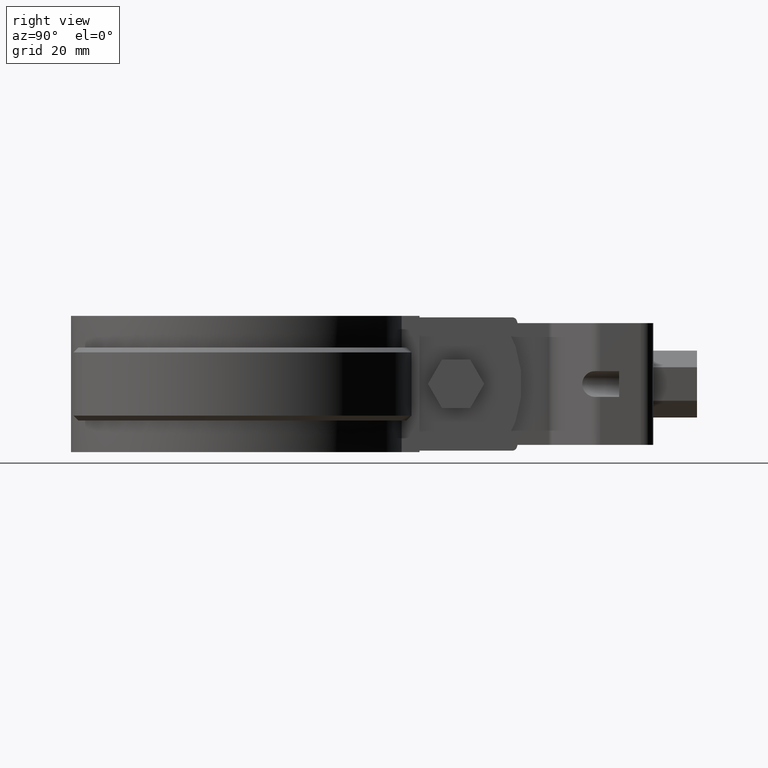
[diagram: clean part render]
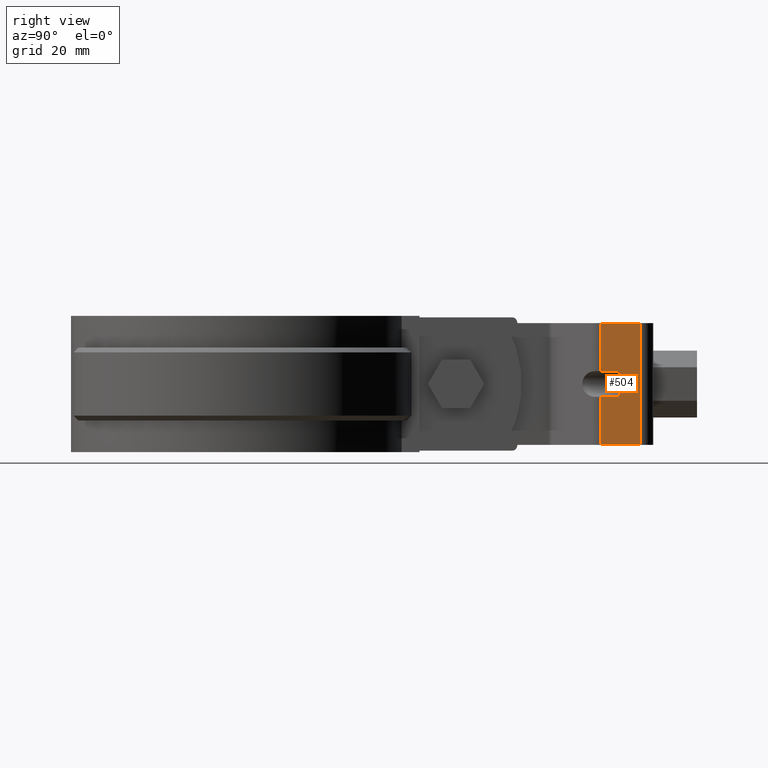
[diagram: same view with one face highlighted and labeled with its STEP entity id]
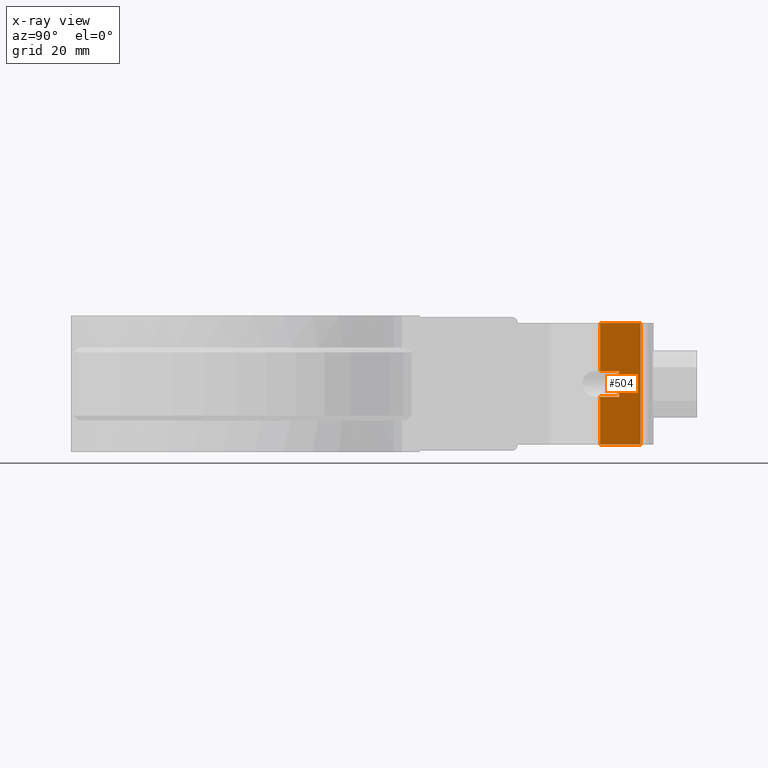
[diagram: x-ray of the same camera — body ghosted, the highlighted face saturated]
A machine part, right view. The second image highlights one B-rep face of the part: STEP entity #504.
The next image is the same camera in x-ray: the body ghosted, the highlighted face saturated — about 0% of this face is hidden behind the body in this view.
In plain terms, the highlighted planar face has unit normal (1, 0, -0).
Its self-contained STEP definition (entity closure, byte-faithful):
#504 = ADVANCED_FACE( '', ( #1003 ), #1004, .T. );
#1003 = FACE_OUTER_BOUND( '', #2261, .T. );
#1004 = PLANE( '', #2262 );
#2261 = EDGE_LOOP( '', ( #4928, #4929, #4930, #4931, #4932, #4933, #4934, #4935 ) );
#2262 = AXIS2_PLACEMENT_3D( '', #4936, #4937, #4938 );
#4928 = ORIENTED_EDGE( '', *, *, #7007, .T. );
#4929 = ORIENTED_EDGE( '', *, *, #7008, .T. );
#4930 = ORIENTED_EDGE( '', *, *, #7009, .F. );
#4931 = ORIENTED_EDGE( '', *, *, #6968, .F. );
#4932 = ORIENTED_EDGE( '', *, *, #7005, .T. );
#4933 = ORIENTED_EDGE( '', *, *, #6993, .T. );
#4934 = ORIENTED_EDGE( '', *, *, #7003, .F. );
#4935 = ORIENTED_EDGE( '', *, *, #6989, .F. );
#4936 = CARTESIAN_POINT( '', ( 12.2499999999565, 74.4973169813890, -8.26763657535423E-009 ) );
#4937 = DIRECTION( '', ( 1.00000000000000, 8.94763120851982E-014, -3.93786082000195E-013 ) );
#4938 = DIRECTION( '', ( 8.94763121102739E-014, -1.00000000000000, 6.36784791563427E-011 ) );
#6968 = EDGE_CURVE( '', #8165, #8167, #8168, .T. );
#6989 = EDGE_CURVE( '', #8204, #8206, #8207, .T. );
#6993 = EDGE_CURVE( '', #8214, #8212, #8215, .T. );
#7003 = EDGE_CURVE( '', #8206, #8212, #8231, .T. );
#7005 = EDGE_CURVE( '', #8165, #8214, #8233, .T. );
#7007 = EDGE_CURVE( '', #8204, #8235, #8236, .T. );
#7008 = EDGE_CURVE( '', #8235, #8237, #8238, .T. );
#7009 = EDGE_CURVE( '', #8167, #8237, #8239, .T. );
#8165 = VERTEX_POINT( '', #11825 );
#8167 = VERTEX_POINT( '', #11827 );
#8168 = LINE( '', #11828, #11829 );
#8204 = VERTEX_POINT( '', #11875 );
#8206 = VERTEX_POINT( '', #11886 );
#8207 = LINE( '', #11887, #11888 );
#8212 = VERTEX_POINT( '', #11893 );
#8214 = VERTEX_POINT( '', #11895 );
#8215 = LINE( '', #11896, #11897 );
#8231 = LINE( '', #11934, #11935 );
#8233 = LINE( '', #11938, #11939 );
#8235 = VERTEX_POINT( '', #11942 );
#8236 = LINE( '', #11943, #11944 );
#8237 = VERTEX_POINT( '', #11945 );
#8238 = LINE( '', #11946, #11947 );
#8239 = LINE( '', #11948, #11949 );
#11825 = CARTESIAN_POINT( '', ( 12.2499999999565, 74.4973169813890, -8.26763657535423E-009 ) );
#11827 = CARTESIAN_POINT( '', ( 12.2499999999558, 82.8015111822749, -8.79643580198319E-009 ) );
#11828 = CARTESIAN_POINT( '', ( 12.2499999999565, 74.4973169813890, -8.26763657535423E-009 ) );
#11829 = VECTOR( '', #13747, 1000.00000000000 );
#11875 = CARTESIAN_POINT( '', ( 12.2499999999505, 74.4973169804243, -15.1500000082676 ) );
#11886 = CARTESIAN_POINT( '', ( 12.2499999999502, 78.4015111813099, -15.1500000085162 ) );
#11887 = CARTESIAN_POINT( '', ( 12.2499999999511, 68.4015111813099, -15.1500000078794 ) );
#11888 = VECTOR( '', #13785, 1000.00000000000 );
#11893 = CARTESIAN_POINT( '', ( 12.2499999999523, 78.4015111816474, -9.85000000851628 ) );
#11895 = CARTESIAN_POINT( '', ( 12.2499999999526, 74.4973169807617, -9.85000000826766 ) );
#11896 = CARTESIAN_POINT( '', ( 12.2499999999532, 68.4015111816474, -9.85000000787950 ) );
#11897 = VECTOR( '', #13795, 1000.00000000000 );
#11934 = CARTESIAN_POINT( '', ( 12.2499999999496, 78.4015111812083, -16.7500000085162 ) );
#11935 = VECTOR( '', #13806, 1000.00000000000 );
#11938 = CARTESIAN_POINT( '', ( 12.2499999999565, 74.4973169813890, -8.26763657535423E-009 ) );
#11939 = VECTOR( '', #13808, 1000.00000000000 );
#11942 = CARTESIAN_POINT( '', ( 12.2499999999467, 74.4973169797971, -25.0000000082676 ) );
#11943 = CARTESIAN_POINT( '', ( 12.2499999999565, 74.4973169813890, -8.26763657535423E-009 ) );
#11944 = VECTOR( '', #13810, 1000.00000000000 );
#11945 = CARTESIAN_POINT( '', ( 12.2499999999459, 82.8015111806830, -25.0000000087964 ) );
#11946 = CARTESIAN_POINT( '', ( 12.2499999999467, 74.4973169797971, -25.0000000082676 ) );
#11947 = VECTOR( '', #13811, 1000.00000000000 );
#11948 = CARTESIAN_POINT( '', ( 12.2499999999558, 82.8015111822749, -8.79643580198319E-009 ) );
#11949 = VECTOR( '', #13812, 1000.00000000000 );
#13747 = DIRECTION( '', ( -8.94763121102739E-014, 1.00000000000000, -6.36784791563427E-011 ) );
#13785 = DIRECTION( '', ( -8.94763121102739E-014, 1.00000000000000, -6.36784791563427E-011 ) );
#13795 = DIRECTION( '', ( -8.94763121102739E-014, 1.00000000000000, -6.36784791563427E-011 ) );
#13806 = DIRECTION( '', ( 3.93787932530478E-013, 6.36784791563427E-011, 1.00000000000000 ) );
#13808 = DIRECTION( '', ( -3.93786081994497E-013, -6.36784791563427E-011, -1.00000000000000 ) );
#13810 = DIRECTION( '', ( -3.93786081994497E-013, -6.36784791563427E-011, -1.00000000000000 ) );
#13811 = DIRECTION( '', ( -8.94763121102739E-014, 1.00000000000000, -6.36784791563427E-011 ) );
#13812 = DIRECTION( '', ( -3.93786081994497E-013, -6.36784791563427E-011, -1.00000000000000 ) );